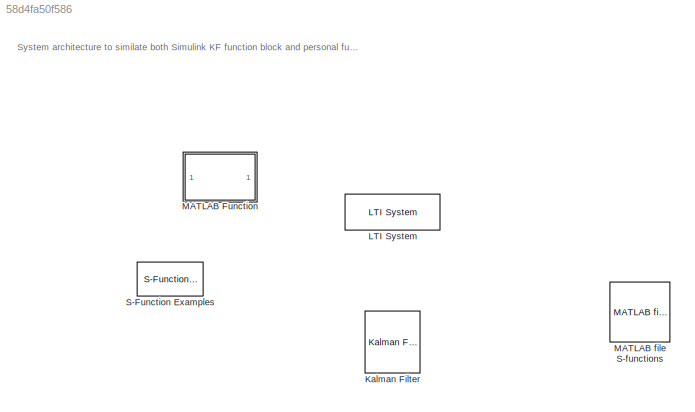
MODEL slx_58d4fa50f586
KIND model
CONFIG AbsTol = auto
CONFIG EnableMultiTasking = off
CONFIG FixedStep = auto
CONFIG MaxStep = auto
CONFIG MinStep = auto
CONFIG RelTol = 1e-3
CONFIG SampleTimeConstraint = Unconstrained
CONFIG SolverName = VariableStepAuto
CONFIG StartTime = 0.0
CONFIG StopTime = 10.0
BLOCK [Reference] Kalman Filter  REF=ctrlSharedLib/Kalman Filter
  LibrarySourceBlock = cstblocks/State Estimation/Kalman Filter
  SourceBlock = ctrlSharedLib/Kalman Filter
  SourceType = ctrlKalmanFilter
BLOCK [Reference] LTI System  REF=cstblocks/LTI System
  SourceBlock = cstblocks/LTI System
  SourceType = LTI Block
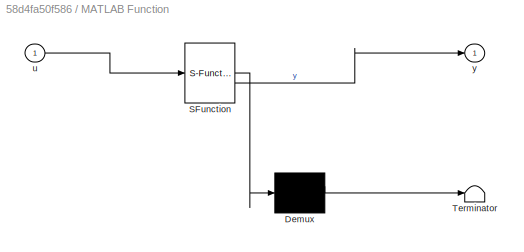
BLOCK [SubSystem] MATLAB Function
  ErrorFcn = Stateflow.Translate.translate
  PermitHierarchicalResolution = ExplicitOnly
  SFBlockType = MATLAB Function
  TreatAsAtomicUnit = on
BLOCK [Demux] MATLAB Function/ Demux 
  Outputs = 1
BLOCK [S-Function] MATLAB Function/ SFunction 
  EnableBusSupport = off
  FunctionName = sf_sfun
  PortCounts = [1 2]
  SFcnIsStateOwnerBlock = off
  SFunctionDeploymentMode = off
  Tag = Stateflow S-Function 2
BLOCK [Terminator] MATLAB Function/ Terminator 
BLOCK [Inport] MATLAB Function/u
BLOCK [Outport] MATLAB Function/y
BLOCK [Reference] MATLAB file S-functions  REF=sfundemos/MATLAB file 
S-functions
  SourceBlock = sfundemos/MATLAB file \nS-functions
BLOCK [Reference] S-Function Examples  REF=simulink/User-Defined
Functions/S-Function Examples
  SourceBlock = simulink/User-Defined\nFunctions/S-Function Examples
  SourceType = S-Function Examples
ANNOTATION (root): System architecture to similate both Simulink KF function block and personal function calls
CHART MATLAB Function states=1 transitions=1
  STATE_LABEL 'eML_blk_kernel()'
  STATE_LABEL 'SCRIPT:\nfunction y = fcn(u)\n\ny = u;\n'
CHART  states=0 transitions=0
